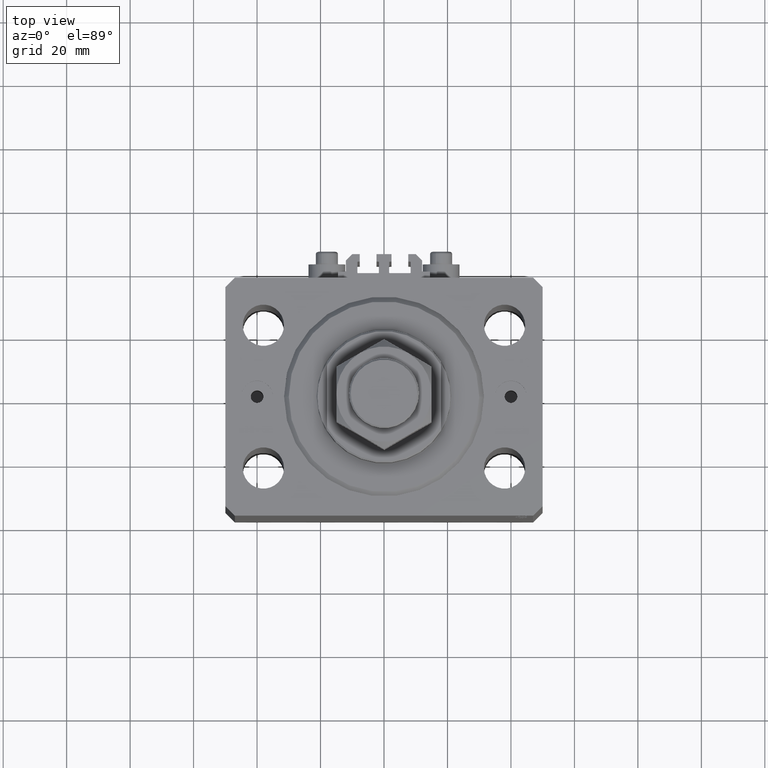
[diagram: clean part render]
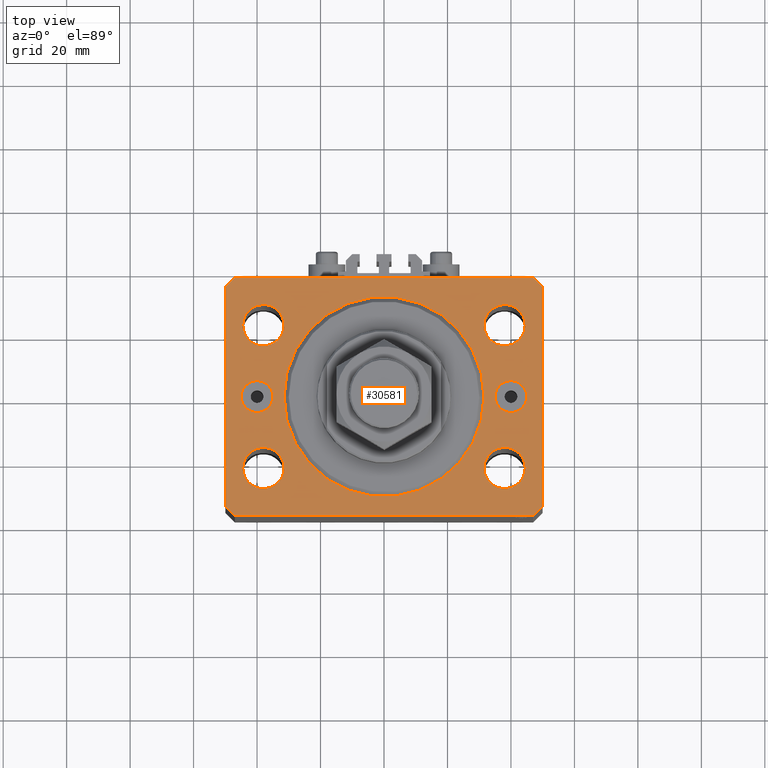
[diagram: same view with one face highlighted and labeled with its STEP entity id]
A machine part, top view. The second image highlights one B-rep face of the part: STEP entity #30581.
In plain terms, the highlighted planar face has unit normal (0, 0, 1).
Its self-contained STEP definition (entity closure, byte-faithful):
#157 = EDGE_CURVE ( 'NONE', #47033, #4207, #23900, .T. ) ;
#540 = ORIENTED_EDGE ( 'NONE', *, *, #4844, .T. ) ;
#695 = PLANE ( 'NONE',  #7238 ) ;
#1231 = DIRECTION ( 'NONE',  ( 0.000000000000000000, 0.000000000000000000, 1.000000000000000000 ) ) ;
#1255 = ORIENTED_EDGE ( 'NONE', *, *, #40845, .T. ) ;
#1290 = DIRECTION ( 'NONE',  ( -0.7071067811865483499, -0.7071067811865466846, 0.000000000000000000 ) ) ;
#1471 = CARTESIAN_POINT ( 'NONE',  ( 40.00000000000000000, 0.000000000000000000, 0.000000000000000000 ) ) ;
#1854 = DIRECTION ( 'NONE',  ( 1.000000000000000000, 0.000000000000000000, 0.000000000000000000 ) ) ;
#1964 = LINE ( 'NONE', #31639, #33021 ) ;
#2503 = ORIENTED_EDGE ( 'NONE', *, *, #23293, .F. ) ;
#2617 = CIRCLE ( 'NONE', #36593, 6.499999999999999112 ) ;
#2943 = DIRECTION ( 'NONE',  ( 1.000000000000000000, -1.476360405086644309E-16, 0.000000000000000000 ) ) ;
#3995 = VERTEX_POINT ( 'NONE', #44231 ) ;
#4095 = DIRECTION ( 'NONE',  ( 0.000000000000000000, 0.000000000000000000, 1.000000000000000000 ) ) ;
#4207 = VERTEX_POINT ( 'NONE', #33279 ) ;
#4377 = DIRECTION ( 'NONE',  ( -1.000000000000000000, 7.381802025433175941E-17, 0.000000000000000000 ) ) ;
#4502 = EDGE_CURVE ( 'NONE', #17096, #26252, #7724, .T. ) ;
#4512 = LINE ( 'NONE', #34694, #12280 ) ;
#4652 = CARTESIAN_POINT ( 'NONE',  ( 31.50000000000000000, 0.000000000000000000, 0.000000000000000000 ) ) ;
#4844 = EDGE_CURVE ( 'NONE', #3995, #31219, #24306, .T. ) ;
#4888 = EDGE_CURVE ( 'NONE', #26804, #30128, #1964, .T. ) ;
#5185 = CARTESIAN_POINT ( 'NONE',  ( -37.99999999999999289, -22.50000000000000000, 0.000000000000000000 ) ) ;
#5234 = CARTESIAN_POINT ( 'NONE',  ( -44.49999999999999289, -22.50000000000000000, 0.000000000000000000 ) ) ;
#5807 = DIRECTION ( 'NONE',  ( 0.000000000000000000, 0.000000000000000000, 1.000000000000000000 ) ) ;
#5837 = ORIENTED_EDGE ( 'NONE', *, *, #26369, .F. ) ;
#5972 = EDGE_CURVE ( 'NONE', #24097, #12650, #42551, .T. ) ;
#6003 = VECTOR ( 'NONE', #2943, 1000.000000000000000 ) ;
#6085 = DIRECTION ( 'NONE',  ( 0.7071067811865491270, -0.7071067811865459074, 0.000000000000000000 ) ) ;
#6361 = CARTESIAN_POINT ( 'NONE',  ( 37.99999999999999289, -22.50000000000000000, 0.000000000000000000 ) ) ;
#6408 = EDGE_CURVE ( 'NONE', #14530, #22161, #11713, .T. ) ;
#6664 = CARTESIAN_POINT ( 'NONE',  ( 50.00000000000000000, -34.50000000000000711, 0.000000000000000000 ) ) ;
#7238 = AXIS2_PLACEMENT_3D ( 'NONE', #31834, #8107, #19964 ) ;
#7393 = DIRECTION ( 'NONE',  ( 7.441712302741091634E-15, 1.000000000000000000, 0.000000000000000000 ) ) ;
#7724 = CIRCLE ( 'NONE', #47998, 4.999999999999997335 ) ;
#7762 = AXIS2_PLACEMENT_3D ( 'NONE', #1471, #32810, #16555 ) ;
#8107 = DIRECTION ( 'NONE',  ( 0.000000000000000000, 0.000000000000000000, 1.000000000000000000 ) ) ;
#8686 = ORIENTED_EDGE ( 'NONE', *, *, #46835, .T. ) ;
#8821 = LINE ( 'NONE', #38270, #32057 ) ;
#9083 = CARTESIAN_POINT ( 'NONE',  ( -47.00000000000000000, -37.49999999999999289, 0.000000000000000000 ) ) ;
#9653 = CIRCLE ( 'NONE', #42835, 31.50000000000000000 ) ;
#9864 = DIRECTION ( 'NONE',  ( 0.000000000000000000, 0.000000000000000000, 1.000000000000000000 ) ) ;
#10950 = AXIS2_PLACEMENT_3D ( 'NONE', #40991, #4095, #14996 ) ;
#11347 = FACE_BOUND ( 'NONE', #43991, .T. ) ;
#11713 = CIRCLE ( 'NONE', #45681, 6.499999999999999112 ) ;
#11956 = VECTOR ( 'NONE', #25169, 1000.000000000000000 ) ;
#12062 = FACE_BOUND ( 'NONE', #23068, .T. ) ;
#12280 = VECTOR ( 'NONE', #1290, 1000.000000000000000 ) ;
#12650 = VERTEX_POINT ( 'NONE', #26847 ) ;
#13283 = DIRECTION ( 'NONE',  ( 0.000000000000000000, 0.000000000000000000, 1.000000000000000000 ) ) ;
#13910 = AXIS2_PLACEMENT_3D ( 'NONE', #48616, #44913, #22859 ) ;
#14262 = CARTESIAN_POINT ( 'NONE',  ( -38.00000000000000000, 22.49999999999999645, 0.000000000000000000 ) ) ;
#14284 = LINE ( 'NONE', #29352, #11956 ) ;
#14523 = AXIS2_PLACEMENT_3D ( 'NONE', #43309, #47027, #32179 ) ;
#14530 = VERTEX_POINT ( 'NONE', #27304 ) ;
#14916 = CARTESIAN_POINT ( 'NONE',  ( -31.50000000000000000, 22.49999999999999645, 0.000000000000000000 ) ) ;
#14996 = DIRECTION ( 'NONE',  ( 1.000000000000000000, 0.000000000000000000, 0.000000000000000000 ) ) ;
#15052 = FACE_OUTER_BOUND ( 'NONE', #47611, .T. ) ;
#16011 = FACE_BOUND ( 'NONE', #38821, .T. ) ;
#16168 = EDGE_CURVE ( 'NONE', #33530, #21357, #9653, .T. ) ;
#16253 = DIRECTION ( 'NONE',  ( 2.011273595335428326E-16, -1.000000000000000000, 0.000000000000000000 ) ) ;
#16555 = DIRECTION ( 'NONE',  ( 1.000000000000000000, 0.000000000000000000, 0.000000000000000000 ) ) ;
#17096 = VERTEX_POINT ( 'NONE', #39495 ) ;
#17642 = CARTESIAN_POINT ( 'NONE',  ( -47.00000000000001421, 37.50000000000000000, 0.000000000000000000 ) ) ;
#18285 = DIRECTION ( 'NONE',  ( 1.000000000000000000, 0.000000000000000000, 0.000000000000000000 ) ) ;
#18459 = CARTESIAN_POINT ( 'NONE',  ( -50.00000000000001421, 34.50000000000000000, 0.000000000000000000 ) ) ;
#18563 = AXIS2_PLACEMENT_3D ( 'NONE', #14262, #13283, #48154 ) ;
#18762 = LINE ( 'NONE', #6664, #33686 ) ;
#19093 = ORIENTED_EDGE ( 'NONE', *, *, #35518, .T. ) ;
#19307 = EDGE_CURVE ( 'NONE', #22161, #14530, #35852, .T. ) ;
#19439 = AXIS2_PLACEMENT_3D ( 'NONE', #46641, #5807, #1854 ) ;
#19721 = ORIENTED_EDGE ( 'NONE', *, *, #16168, .F. ) ;
#19886 = ORIENTED_EDGE ( 'NONE', *, *, #42597, .T. ) ;
#19964 = DIRECTION ( 'NONE',  ( 1.000000000000000000, 0.000000000000000000, -0.000000000000000000 ) ) ;
#19969 = ORIENTED_EDGE ( 'NONE', *, *, #42769, .F. ) ;
#20138 = EDGE_CURVE ( 'NONE', #48353, #28398, #47715, .T. ) ;
#20578 = ORIENTED_EDGE ( 'NONE', *, *, #6408, .F. ) ;
#20972 = VERTEX_POINT ( 'NONE', #46266 ) ;
#21134 = CARTESIAN_POINT ( 'NONE',  ( 47.00000000000056843, 37.49999999999999289, 0.000000000000000000 ) ) ;
#21357 = VERTEX_POINT ( 'NONE', #4652 ) ;
#21448 = ORIENTED_EDGE ( 'NONE', *, *, #39488, .T. ) ;
#22065 = DIRECTION ( 'NONE',  ( 1.000000000000000000, 0.000000000000000000, 0.000000000000000000 ) ) ;
#22161 = VERTEX_POINT ( 'NONE', #48462 ) ;
#22471 = EDGE_LOOP ( 'NONE', ( #29194, #29482 ) ) ;
#22712 = CARTESIAN_POINT ( 'NONE',  ( 0.000000000000000000, 0.000000000000000000, 0.000000000000000000 ) ) ;
#22780 = DIRECTION ( 'NONE',  ( 0.000000000000000000, 0.000000000000000000, 1.000000000000000000 ) ) ;
#22859 = DIRECTION ( 'NONE',  ( 1.000000000000000000, 0.000000000000000000, 0.000000000000000000 ) ) ;
#22894 = CARTESIAN_POINT ( 'NONE',  ( 44.50000000000000000, 22.49999999999998934, 0.000000000000000000 ) ) ;
#23068 = EDGE_LOOP ( 'NONE', ( #35554, #2503 ) ) ;
#23208 = AXIS2_PLACEMENT_3D ( 'NONE', #25281, #22780, #22065 ) ;
#23293 = EDGE_CURVE ( 'NONE', #28398, #48353, #33511, .T. ) ;
#23579 = EDGE_LOOP ( 'NONE', ( #48756, #19721 ) ) ;
#23672 = FACE_BOUND ( 'NONE', #46066, .T. ) ;
#23900 = LINE ( 'NONE', #39014, #40028 ) ;
#24097 = VERTEX_POINT ( 'NONE', #22894 ) ;
#24265 = CARTESIAN_POINT ( 'NONE',  ( -31.50000000000000000, 3.857637417314162689E-15, 0.000000000000000000 ) ) ;
#24306 = CIRCLE ( 'NONE', #7762, 4.999999999999997335 ) ;
#24880 = VECTOR ( 'NONE', #6085, 1000.000000000000114 ) ;
#25169 = DIRECTION ( 'NONE',  ( 0.7071067811865483499, 0.7071067811865466846, 0.000000000000000000 ) ) ;
#25181 = ORIENTED_EDGE ( 'NONE', *, *, #4888, .T. ) ;
#25281 = CARTESIAN_POINT ( 'NONE',  ( -37.99999999999999289, -22.50000000000000000, 0.000000000000000000 ) ) ;
#25776 = VERTEX_POINT ( 'NONE', #26020 ) ;
#25813 = CARTESIAN_POINT ( 'NONE',  ( 40.00000000000000000, 0.000000000000000000, 0.000000000000000000 ) ) ;
#26020 = CARTESIAN_POINT ( 'NONE',  ( 50.00000000000000000, -34.50000000000000711, 0.000000000000000000 ) ) ;
#26252 = VERTEX_POINT ( 'NONE', #27650 ) ;
#26369 = EDGE_CURVE ( 'NONE', #38886, #43111, #43082, .T. ) ;
#26412 = FACE_BOUND ( 'NONE', #48897, .T. ) ;
#26717 = DIRECTION ( 'NONE',  ( 1.000000000000000000, 0.000000000000000000, 0.000000000000000000 ) ) ;
#26804 = VERTEX_POINT ( 'NONE', #42885 ) ;
#26847 = CARTESIAN_POINT ( 'NONE',  ( 31.50000000000000000, 22.49999999999998934, 0.000000000000000000 ) ) ;
#27255 = EDGE_CURVE ( 'NONE', #35106, #20972, #44000, .T. ) ;
#27304 = CARTESIAN_POINT ( 'NONE',  ( 44.49999999999999289, -22.50000000000000000, 0.000000000000000000 ) ) ;
#27504 = ORIENTED_EDGE ( 'NONE', *, *, #157, .T. ) ;
#27650 = CARTESIAN_POINT ( 'NONE',  ( -45.00000000000000000, 6.123233995736762338E-16, 0.000000000000000000 ) ) ;
#28398 = VERTEX_POINT ( 'NONE', #5234 ) ;
#29194 = ORIENTED_EDGE ( 'NONE', *, *, #5972, .F. ) ;
#29352 = CARTESIAN_POINT ( 'NONE',  ( 47.00000000000000000, -37.50000000000000711, 0.000000000000000000 ) ) ;
#29402 = DIRECTION ( 'NONE',  ( 0.000000000000000000, 0.000000000000000000, 1.000000000000000000 ) ) ;
#29482 = ORIENTED_EDGE ( 'NONE', *, *, #35907, .F. ) ;
#29716 = CIRCLE ( 'NONE', #19439, 31.50000000000000000 ) ;
#30128 = VERTEX_POINT ( 'NONE', #21134 ) ;
#30396 = ORIENTED_EDGE ( 'NONE', *, *, #43559, .F. ) ;
#30408 = ORIENTED_EDGE ( 'NONE', *, *, #27255, .T. ) ;
#30581 = ADVANCED_FACE ( 'NONE', ( #15052, #11347, #37812, #26412, #12062, #34581, #16011, #23672 ), #695, .T. ) ;
#30676 = DIRECTION ( 'NONE',  ( 0.000000000000000000, 0.000000000000000000, 1.000000000000000000 ) ) ;
#31137 = DIRECTION ( 'NONE',  ( -0.7071067811865361374, 0.7071067811865588970, 0.000000000000000000 ) ) ;
#31219 = VERTEX_POINT ( 'NONE', #45245 ) ;
#31434 = EDGE_CURVE ( 'NONE', #20972, #25776, #14284, .T. ) ;
#31482 = ORIENTED_EDGE ( 'NONE', *, *, #31434, .T. ) ;
#31639 = CARTESIAN_POINT ( 'NONE',  ( 50.00000000000051870, 34.49999999999995026, 0.000000000000000000 ) ) ;
#31834 = CARTESIAN_POINT ( 'NONE',  ( 0.000000000000000000, 0.000000000000000000, 0.000000000000000000 ) ) ;
#31892 = DIRECTION ( 'NONE',  ( 1.000000000000000000, 0.000000000000000000, 0.000000000000000000 ) ) ;
#32032 = AXIS2_PLACEMENT_3D ( 'NONE', #43737, #9864, #46970 ) ;
#32057 = VECTOR ( 'NONE', #4377, 1000.000000000000000 ) ;
#32135 = CARTESIAN_POINT ( 'NONE',  ( -47.00000000000000000, -37.49999999999999289, 0.000000000000000000 ) ) ;
#32179 = DIRECTION ( 'NONE',  ( 1.000000000000000000, 0.000000000000000000, 0.000000000000000000 ) ) ;
#32552 = CARTESIAN_POINT ( 'NONE',  ( -50.00000000000000000, -34.50000000000000000, 0.000000000000000000 ) ) ;
#32810 = DIRECTION ( 'NONE',  ( 0.000000000000000000, -0.000000000000000000, -1.000000000000000000 ) ) ;
#32813 = CARTESIAN_POINT ( 'NONE',  ( -31.49999999999999289, -22.50000000000000000, 0.000000000000000000 ) ) ;
#33021 = VECTOR ( 'NONE', #31137, 1000.000000000000114 ) ;
#33279 = CARTESIAN_POINT ( 'NONE',  ( -50.00000000000000000, -34.50000000000000000, 0.000000000000000000 ) ) ;
#33511 = CIRCLE ( 'NONE', #23208, 6.499999999999999112 ) ;
#33530 = VERTEX_POINT ( 'NONE', #24265 ) ;
#33686 = VECTOR ( 'NONE', #7393, 1000.000000000000000 ) ;
#34581 = FACE_BOUND ( 'NONE', #23579, .T. ) ;
#34694 = CARTESIAN_POINT ( 'NONE',  ( -47.00000000000001421, 37.50000000000000000, 0.000000000000000000 ) ) ;
#35106 = VERTEX_POINT ( 'NONE', #9083 ) ;
#35137 = CARTESIAN_POINT ( 'NONE',  ( 38.00000000000000000, 22.49999999999998934, 0.000000000000000000 ) ) ;
#35236 = CIRCLE ( 'NONE', #13910, 4.999999999999997335 ) ;
#35518 = EDGE_CURVE ( 'NONE', #31219, #3995, #45263, .T. ) ;
#35554 = ORIENTED_EDGE ( 'NONE', *, *, #20138, .F. ) ;
#35852 = CIRCLE ( 'NONE', #14523, 6.499999999999999112 ) ;
#35907 = EDGE_CURVE ( 'NONE', #12650, #24097, #2617, .T. ) ;
#36593 = AXIS2_PLACEMENT_3D ( 'NONE', #35137, #30676, #26717 ) ;
#37276 = DIRECTION ( 'NONE',  ( 1.000000000000000000, 0.000000000000000000, 0.000000000000000000 ) ) ;
#37812 = FACE_BOUND ( 'NONE', #22471, .T. ) ;
#37905 = DIRECTION ( 'NONE',  ( 1.000000000000000000, 0.000000000000000000, 0.000000000000000000 ) ) ;
#38143 = CARTESIAN_POINT ( 'NONE',  ( -40.00000000000000000, 0.000000000000000000, 0.000000000000000000 ) ) ;
#38270 = CARTESIAN_POINT ( 'NONE',  ( 47.00000000000056843, 37.49999999999999289, 0.000000000000000000 ) ) ;
#38821 = EDGE_LOOP ( 'NONE', ( #45543, #19969 ) ) ;
#38886 = VERTEX_POINT ( 'NONE', #47563 ) ;
#39014 = CARTESIAN_POINT ( 'NONE',  ( -50.00000000000001421, 34.50000000000000000, 0.000000000000000000 ) ) ;
#39488 = EDGE_CURVE ( 'NONE', #4207, #35106, #47888, .T. ) ;
#39495 = CARTESIAN_POINT ( 'NONE',  ( -35.00000000000000000, 0.000000000000000000, 0.000000000000000000 ) ) ;
#39903 = CIRCLE ( 'NONE', #18563, 6.499999999999999112 ) ;
#40028 = VECTOR ( 'NONE', #16253, 1000.000000000000000 ) ;
#40845 = EDGE_CURVE ( 'NONE', #43035, #47033, #4512, .T. ) ;
#40991 = CARTESIAN_POINT ( 'NONE',  ( 38.00000000000000000, 22.49999999999998934, 0.000000000000000000 ) ) ;
#41403 = DIRECTION ( 'NONE',  ( 0.000000000000000000, -0.000000000000000000, -1.000000000000000000 ) ) ;
#41647 = DIRECTION ( 'NONE',  ( 1.000000000000000000, 0.000000000000000000, 0.000000000000000000 ) ) ;
#42551 = CIRCLE ( 'NONE', #10950, 6.499999999999999112 ) ;
#42597 = EDGE_CURVE ( 'NONE', #30128, #43035, #8821, .T. ) ;
#42769 = EDGE_CURVE ( 'NONE', #26252, #17096, #35236, .T. ) ;
#42835 = AXIS2_PLACEMENT_3D ( 'NONE', #22712, #29402, #18285 ) ;
#42885 = CARTESIAN_POINT ( 'NONE',  ( 50.00000000000051870, 34.49999999999995026, 0.000000000000000000 ) ) ;
#43035 = VERTEX_POINT ( 'NONE', #17642 ) ;
#43082 = CIRCLE ( 'NONE', #32032, 6.499999999999999112 ) ;
#43111 = VERTEX_POINT ( 'NONE', #14916 ) ;
#43298 = ORIENTED_EDGE ( 'NONE', *, *, #19307, .F. ) ;
#43309 = CARTESIAN_POINT ( 'NONE',  ( 37.99999999999999289, -22.50000000000000000, 0.000000000000000000 ) ) ;
#43559 = EDGE_CURVE ( 'NONE', #43111, #38886, #39903, .T. ) ;
#43737 = CARTESIAN_POINT ( 'NONE',  ( -38.00000000000000000, 22.49999999999999645, 0.000000000000000000 ) ) ;
#43991 = EDGE_LOOP ( 'NONE', ( #30396, #5837 ) ) ;
#44000 = LINE ( 'NONE', #32135, #6003 ) ;
#44231 = CARTESIAN_POINT ( 'NONE',  ( 45.00000000000000000, 0.000000000000000000, 0.000000000000000000 ) ) ;
#44492 = AXIS2_PLACEMENT_3D ( 'NONE', #25813, #41403, #41647 ) ;
#44570 = AXIS2_PLACEMENT_3D ( 'NONE', #5185, #1231, #31892 ) ;
#44913 = DIRECTION ( 'NONE',  ( 0.000000000000000000, 0.000000000000000000, 1.000000000000000000 ) ) ;
#45245 = CARTESIAN_POINT ( 'NONE',  ( 35.00000000000000000, 6.123233995736762338E-16, 0.000000000000000000 ) ) ;
#45263 = CIRCLE ( 'NONE', #44492, 4.999999999999997335 ) ;
#45543 = ORIENTED_EDGE ( 'NONE', *, *, #4502, .F. ) ;
#45681 = AXIS2_PLACEMENT_3D ( 'NONE', #6361, #48882, #37276 ) ;
#45809 = DIRECTION ( 'NONE',  ( 0.000000000000000000, 0.000000000000000000, 1.000000000000000000 ) ) ;
#46066 = EDGE_LOOP ( 'NONE', ( #540, #19093 ) ) ;
#46266 = CARTESIAN_POINT ( 'NONE',  ( 47.00000000000000000, -37.50000000000000711, 0.000000000000000000 ) ) ;
#46641 = CARTESIAN_POINT ( 'NONE',  ( 0.000000000000000000, 0.000000000000000000, 0.000000000000000000 ) ) ;
#46835 = EDGE_CURVE ( 'NONE', #25776, #26804, #18762, .T. ) ;
#46970 = DIRECTION ( 'NONE',  ( 1.000000000000000000, 0.000000000000000000, 0.000000000000000000 ) ) ;
#47027 = DIRECTION ( 'NONE',  ( 0.000000000000000000, 0.000000000000000000, 1.000000000000000000 ) ) ;
#47033 = VERTEX_POINT ( 'NONE', #18459 ) ;
#47194 = EDGE_CURVE ( 'NONE', #21357, #33530, #29716, .T. ) ;
#47563 = CARTESIAN_POINT ( 'NONE',  ( -44.50000000000000000, 22.49999999999999645, 0.000000000000000000 ) ) ;
#47611 = EDGE_LOOP ( 'NONE', ( #19886, #1255, #27504, #21448, #30408, #31482, #8686, #25181 ) ) ;
#47715 = CIRCLE ( 'NONE', #44570, 6.499999999999999112 ) ;
#47888 = LINE ( 'NONE', #32552, #24880 ) ;
#47998 = AXIS2_PLACEMENT_3D ( 'NONE', #38143, #45809, #37905 ) ;
#48154 = DIRECTION ( 'NONE',  ( 1.000000000000000000, 0.000000000000000000, 0.000000000000000000 ) ) ;
#48353 = VERTEX_POINT ( 'NONE', #32813 ) ;
#48462 = CARTESIAN_POINT ( 'NONE',  ( 31.49999999999999289, -22.50000000000000000, 0.000000000000000000 ) ) ;
#48616 = CARTESIAN_POINT ( 'NONE',  ( -40.00000000000000000, 0.000000000000000000, 0.000000000000000000 ) ) ;
#48756 = ORIENTED_EDGE ( 'NONE', *, *, #47194, .F. ) ;
#48882 = DIRECTION ( 'NONE',  ( 0.000000000000000000, 0.000000000000000000, 1.000000000000000000 ) ) ;
#48897 = EDGE_LOOP ( 'NONE', ( #20578, #43298 ) ) ;